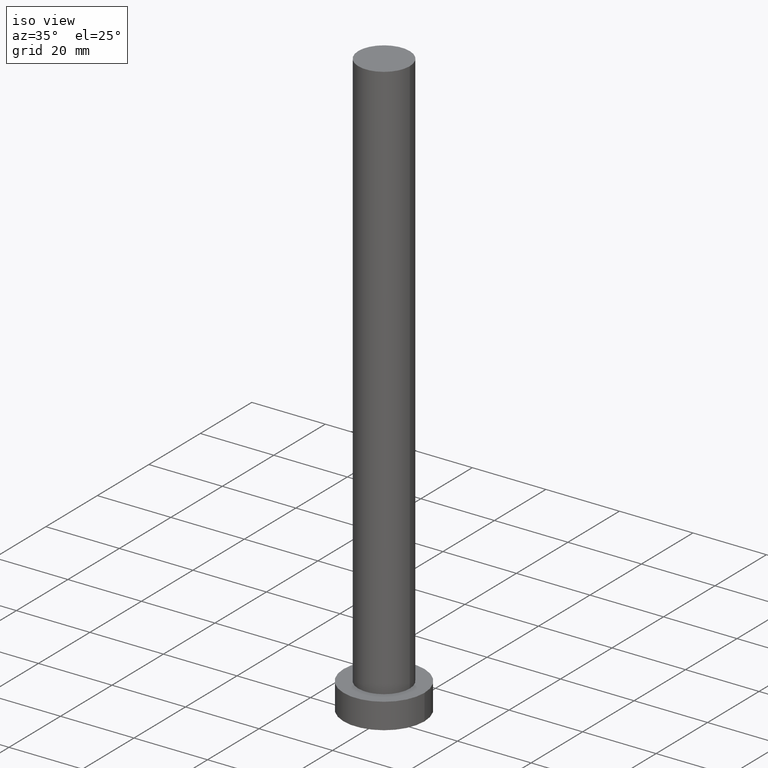
[diagram: clean part render]
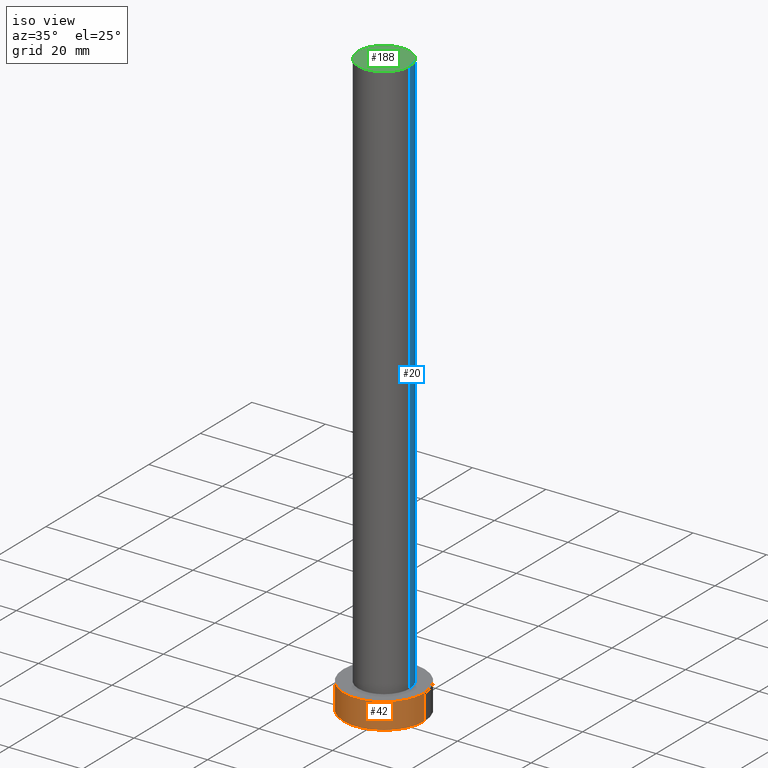
[diagram: same view with three faces highlighted in distinct colors, each labeled with its STEP entity id]
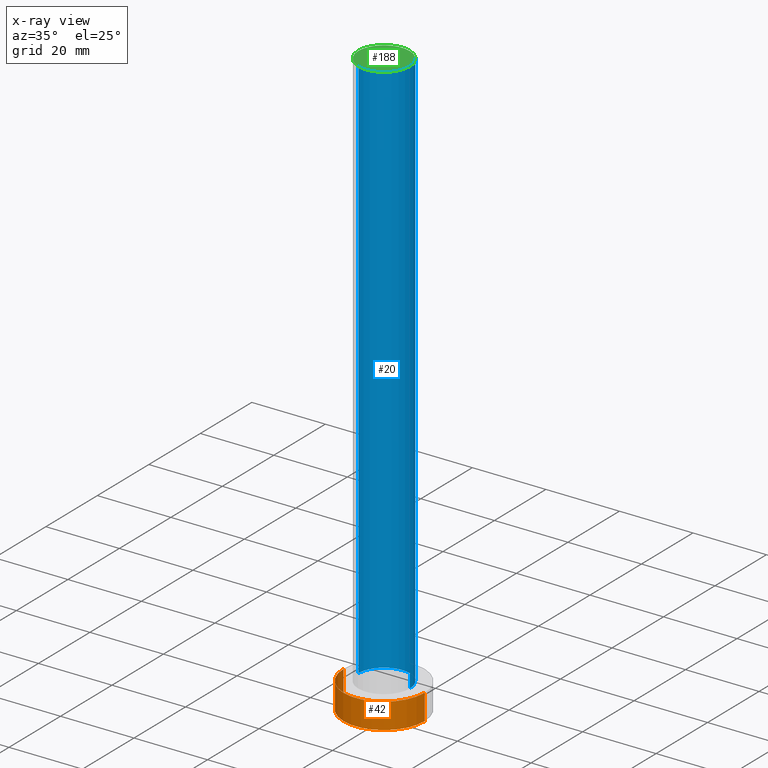
[diagram: x-ray of the same camera — body ghosted, the three highlighted faces saturated]
A machine part, iso view with three faces highlighted in distinct colors.
The next image is the same camera in x-ray (body ghosted, the three faces saturated) — at least one of them is partly hidden behind the body in this view.
Their STEP definitions:

[orange] entity #42 — the highlighted cylindrical surface (partial cylindrical patch) has radius 11 mm, axis along (-0, -0, -1).
#2 = DIRECTION ( 'NONE',  ( 1.000000000000000000, 0.000000000000000000, 0.000000000000000000 ) ) ;
#13 = DIRECTION ( 'NONE',  ( -1.000000000000000000, 0.000000000000000000, 0.000000000000000000 ) ) ;
#14 = CIRCLE ( 'NONE', #189, 11.00000000000000000 ) ;
#18 = FACE_OUTER_BOUND ( 'NONE', #203, .T. ) ;
#22 = DIRECTION ( 'NONE',  ( 0.000000000000000000, 0.000000000000000000, 1.000000000000000000 ) ) ;
#24 = CARTESIAN_POINT ( 'NONE',  ( 0.000000000000000000, 0.000000000000000000, 7.000000000000000000 ) ) ;
#35 = CARTESIAN_POINT ( 'NONE',  ( 0.000000000000000000, 0.000000000000000000, 0.000000000000000000 ) ) ;
#42 = ADVANCED_FACE ( 'NONE', ( #18 ), #179, .T. ) ;
#47 = CARTESIAN_POINT ( 'NONE',  ( 0.000000000000000000, 0.000000000000000000, 7.000000000000000000 ) ) ;
#64 = AXIS2_PLACEMENT_3D ( 'NONE', #47, #231, #13 ) ;
#69 = VERTEX_POINT ( 'NONE', #128 ) ;
#82 = VECTOR ( 'NONE', #95, 1000.000000000000000 ) ;
#83 = VERTEX_POINT ( 'NONE', #154 ) ;
#87 = VERTEX_POINT ( 'NONE', #183 ) ;
#95 = DIRECTION ( 'NONE',  ( -0.000000000000000000, -0.000000000000000000, -1.000000000000000000 ) ) ;
#103 = ORIENTED_EDGE ( 'NONE', *, *, #215, .T. ) ;
#104 = CIRCLE ( 'NONE', #213, 11.00000000000000000 ) ;
#111 = DIRECTION ( 'NONE',  ( 0.000000000000000000, 0.000000000000000000, 1.000000000000000000 ) ) ;
#112 = DIRECTION ( 'NONE',  ( -0.000000000000000000, -0.000000000000000000, -1.000000000000000000 ) ) ;
#122 = VECTOR ( 'NONE', #112, 1000.000000000000000 ) ;
#128 = CARTESIAN_POINT ( 'NONE',  ( -11.00000000000000000, 0.000000000000000000, 0.000000000000000000 ) ) ;
#134 = CARTESIAN_POINT ( 'NONE',  ( -11.00000000000000000, 0.000000000000000000, 7.000000000000000000 ) ) ;
#135 = LINE ( 'NONE', #241, #82 ) ;
#154 = CARTESIAN_POINT ( 'NONE',  ( 11.00000000000000000, 1.347111479062088405E-15, 7.000000000000000000 ) ) ;
#171 = ORIENTED_EDGE ( 'NONE', *, *, #243, .F. ) ;
#179 = CYLINDRICAL_SURFACE ( 'NONE', #64, 11.00000000000000000 ) ;
#180 = EDGE_CURVE ( 'NONE', #87, #69, #238, .T. ) ;
#183 = CARTESIAN_POINT ( 'NONE',  ( -11.00000000000000000, 0.000000000000000000, 7.000000000000000000 ) ) ;
#187 = ORIENTED_EDGE ( 'NONE', *, *, #234, .F. ) ;
#189 = AXIS2_PLACEMENT_3D ( 'NONE', #35, #111, #210 ) ;
#203 = EDGE_LOOP ( 'NONE', ( #171, #187, #245, #103 ) ) ;
#210 = DIRECTION ( 'NONE',  ( 1.000000000000000000, 0.000000000000000000, 0.000000000000000000 ) ) ;
#213 = AXIS2_PLACEMENT_3D ( 'NONE', #24, #22, #2 ) ;
#215 = EDGE_CURVE ( 'NONE', #69, #246, #14, .T. ) ;
#223 = CARTESIAN_POINT ( 'NONE',  ( 11.00000000000000000, 1.347111479062088405E-15, 0.000000000000000000 ) ) ;
#231 = DIRECTION ( 'NONE',  ( -0.000000000000000000, -0.000000000000000000, -1.000000000000000000 ) ) ;
#234 = EDGE_CURVE ( 'NONE', #87, #83, #104, .T. ) ;
#238 = LINE ( 'NONE', #134, #122 ) ;
#241 = CARTESIAN_POINT ( 'NONE',  ( 11.00000000000000000, 1.347111479062088405E-15, 7.000000000000000000 ) ) ;
#243 = EDGE_CURVE ( 'NONE', #83, #246, #135, .T. ) ;
#245 = ORIENTED_EDGE ( 'NONE', *, *, #180, .T. ) ;
#246 = VERTEX_POINT ( 'NONE', #223 ) ;

[blue] entity #20 — the highlighted cylindrical surface (edge-blend (fillet) strip) has radius 7 mm, axis along (-0, -0, -1).
#3 = VECTOR ( 'NONE', #16, 1000.000000000000000 ) ;
#8 = AXIS2_PLACEMENT_3D ( 'NONE', #107, #182, #251 ) ;
#12 = VERTEX_POINT ( 'NONE', #43 ) ;
#16 = DIRECTION ( 'NONE',  ( -0.000000000000000000, -0.000000000000000000, -1.000000000000000000 ) ) ;
#20 = ADVANCED_FACE ( 'NONE', ( #207 ), #30, .T. ) ;
#25 = VERTEX_POINT ( 'NONE', #214 ) ;
#30 = CYLINDRICAL_SURFACE ( 'NONE', #8, 7.000000000000000888 ) ;
#36 = DIRECTION ( 'NONE',  ( 1.000000000000000000, 0.000000000000000000, 0.000000000000000000 ) ) ;
#43 = CARTESIAN_POINT ( 'NONE',  ( 7.000000000000000888, 8.572527594031474176E-16, 7.000000000000000000 ) ) ;
#48 = DIRECTION ( 'NONE',  ( 0.000000000000000000, 0.000000000000000000, 1.000000000000000000 ) ) ;
#49 = LINE ( 'NONE', #160, #86 ) ;
#53 = CARTESIAN_POINT ( 'NONE',  ( 7.000000000000000888, 8.572527594031474176E-16, 160.0000000000000000 ) ) ;
#54 = AXIS2_PLACEMENT_3D ( 'NONE', #157, #48, #36 ) ;
#55 = EDGE_CURVE ( 'NONE', #88, #25, #73, .T. ) ;
#71 = CIRCLE ( 'NONE', #236, 7.000000000000000888 ) ;
#73 = LINE ( 'NONE', #75, #3 ) ;
#75 = CARTESIAN_POINT ( 'NONE',  ( -7.000000000000000888, 0.000000000000000000, 160.0000000000000000 ) ) ;
#81 = EDGE_CURVE ( 'NONE', #229, #12, #49, .T. ) ;
#86 = VECTOR ( 'NONE', #194, 1000.000000000000000 ) ;
#88 = VERTEX_POINT ( 'NONE', #232 ) ;
#90 = DIRECTION ( 'NONE',  ( 1.000000000000000000, 0.000000000000000000, 0.000000000000000000 ) ) ;
#91 = EDGE_CURVE ( 'NONE', #12, #25, #71, .T. ) ;
#101 = CIRCLE ( 'NONE', #54, 7.000000000000000888 ) ;
#105 = ORIENTED_EDGE ( 'NONE', *, *, #91, .T. ) ;
#106 = DIRECTION ( 'NONE',  ( 0.000000000000000000, 0.000000000000000000, 1.000000000000000000 ) ) ;
#107 = CARTESIAN_POINT ( 'NONE',  ( 0.000000000000000000, 0.000000000000000000, 160.0000000000000000 ) ) ;
#121 = ORIENTED_EDGE ( 'NONE', *, *, #81, .T. ) ;
#137 = EDGE_CURVE ( 'NONE', #229, #88, #101, .T. ) ;
#146 = EDGE_LOOP ( 'NONE', ( #201, #121, #105, #178 ) ) ;
#157 = CARTESIAN_POINT ( 'NONE',  ( 0.000000000000000000, 0.000000000000000000, 160.0000000000000000 ) ) ;
#160 = CARTESIAN_POINT ( 'NONE',  ( 7.000000000000000888, 8.572527594031474176E-16, 160.0000000000000000 ) ) ;
#178 = ORIENTED_EDGE ( 'NONE', *, *, #55, .F. ) ;
#182 = DIRECTION ( 'NONE',  ( -0.000000000000000000, -0.000000000000000000, -1.000000000000000000 ) ) ;
#194 = DIRECTION ( 'NONE',  ( -0.000000000000000000, -0.000000000000000000, -1.000000000000000000 ) ) ;
#201 = ORIENTED_EDGE ( 'NONE', *, *, #137, .F. ) ;
#207 = FACE_OUTER_BOUND ( 'NONE', #146, .T. ) ;
#214 = CARTESIAN_POINT ( 'NONE',  ( -7.000000000000000888, 0.000000000000000000, 7.000000000000000000 ) ) ;
#229 = VERTEX_POINT ( 'NONE', #53 ) ;
#232 = CARTESIAN_POINT ( 'NONE',  ( -7.000000000000000888, 0.000000000000000000, 160.0000000000000000 ) ) ;
#236 = AXIS2_PLACEMENT_3D ( 'NONE', #255, #106, #90 ) ;
#251 = DIRECTION ( 'NONE',  ( -1.000000000000000000, 0.000000000000000000, 0.000000000000000000 ) ) ;
#255 = CARTESIAN_POINT ( 'NONE',  ( 0.000000000000000000, 0.000000000000000000, 7.000000000000000000 ) ) ;

[green] entity #188 — the highlighted planar face has unit normal (0, 0, 1).
#15 = PLANE ( 'NONE',  #66 ) ;
#29 = EDGE_CURVE ( 'NONE', #88, #229, #158, .T. ) ;
#32 = DIRECTION ( 'NONE',  ( 1.000000000000000000, 0.000000000000000000, -0.000000000000000000 ) ) ;
#36 = DIRECTION ( 'NONE',  ( 1.000000000000000000, 0.000000000000000000, 0.000000000000000000 ) ) ;
#48 = DIRECTION ( 'NONE',  ( 0.000000000000000000, 0.000000000000000000, 1.000000000000000000 ) ) ;
#53 = CARTESIAN_POINT ( 'NONE',  ( 7.000000000000000888, 8.572527594031474176E-16, 160.0000000000000000 ) ) ;
#54 = AXIS2_PLACEMENT_3D ( 'NONE', #157, #48, #36 ) ;
#60 = ORIENTED_EDGE ( 'NONE', *, *, #137, .T. ) ;
#66 = AXIS2_PLACEMENT_3D ( 'NONE', #197, #132, #32 ) ;
#77 = DIRECTION ( 'NONE',  ( 1.000000000000000000, 0.000000000000000000, 0.000000000000000000 ) ) ;
#88 = VERTEX_POINT ( 'NONE', #232 ) ;
#89 = CARTESIAN_POINT ( 'NONE',  ( 0.000000000000000000, 0.000000000000000000, 160.0000000000000000 ) ) ;
#94 = DIRECTION ( 'NONE',  ( 0.000000000000000000, 0.000000000000000000, 1.000000000000000000 ) ) ;
#101 = CIRCLE ( 'NONE', #54, 7.000000000000000888 ) ;
#132 = DIRECTION ( 'NONE',  ( 0.000000000000000000, 0.000000000000000000, 1.000000000000000000 ) ) ;
#137 = EDGE_CURVE ( 'NONE', #229, #88, #101, .T. ) ;
#152 = AXIS2_PLACEMENT_3D ( 'NONE', #89, #94, #77 ) ;
#157 = CARTESIAN_POINT ( 'NONE',  ( 0.000000000000000000, 0.000000000000000000, 160.0000000000000000 ) ) ;
#158 = CIRCLE ( 'NONE', #152, 7.000000000000000888 ) ;
#188 = ADVANCED_FACE ( 'NONE', ( #196 ), #15, .T. ) ;
#196 = FACE_OUTER_BOUND ( 'NONE', #206, .T. ) ;
#197 = CARTESIAN_POINT ( 'NONE',  ( 0.000000000000000000, 0.000000000000000000, 160.0000000000000000 ) ) ;
#206 = EDGE_LOOP ( 'NONE', ( #209, #60 ) ) ;
#209 = ORIENTED_EDGE ( 'NONE', *, *, #29, .T. ) ;
#229 = VERTEX_POINT ( 'NONE', #53 ) ;
#232 = CARTESIAN_POINT ( 'NONE',  ( -7.000000000000000888, 0.000000000000000000, 160.0000000000000000 ) ) ;